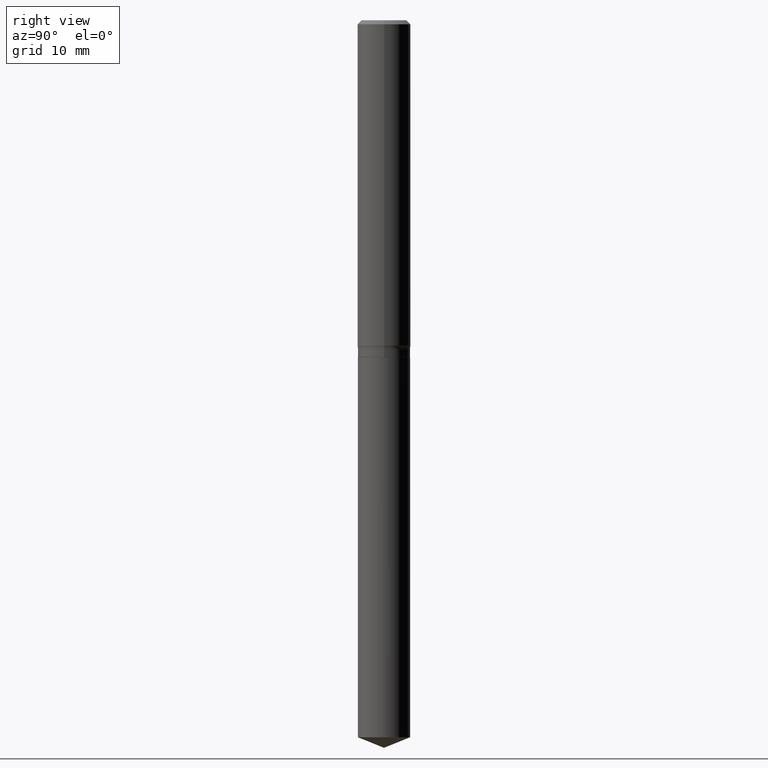
[diagram: clean part render]
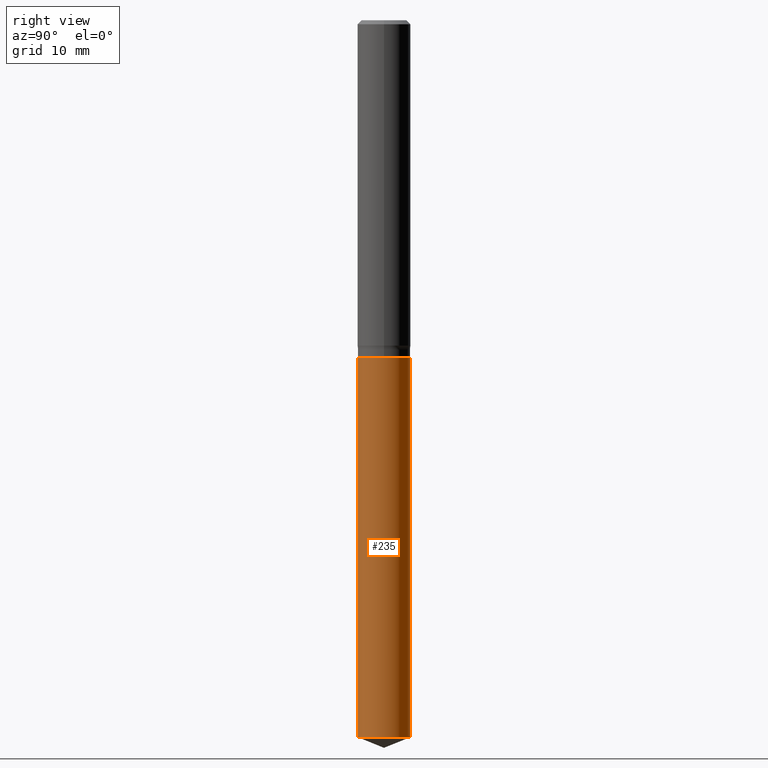
[diagram: same view with one face highlighted and labeled with its STEP entity id]
A machine part, right view. The second image highlights one B-rep face of the part: STEP entity #235.
In plain terms, the highlighted cylindrical surface (edge-blend (fillet) strip) has radius 2.9502 mm, axis along (-0, 0, 1).
Its self-contained STEP definition (entity closure, byte-faithful):
#17 = VERTEX_POINT ( 'NONE', #460 ) ;
#19 = VECTOR ( 'NONE', #210, 39.37007874015748143 ) ;
#25 = CIRCLE ( 'NONE', #471, 0.1161500000000000032 ) ;
#26 = FACE_OUTER_BOUND ( 'NONE', #431, .T. ) ;
#54 = CIRCLE ( 'NONE', #293, 0.1161500000000000032 ) ;
#63 = VERTEX_POINT ( 'NONE', #424 ) ;
#69 = EDGE_CURVE ( 'NONE', #63, #399, #54, .T. ) ;
#73 = CYLINDRICAL_SURFACE ( 'NONE', #433, 0.1161500000000000032 ) ;
#94 = ORIENTED_EDGE ( 'NONE', *, *, #261, .T. ) ;
#131 = CARTESIAN_POINT ( 'NONE',  ( 7.779203458462590144E-29, -1.110666872809960382E-14, -3.181072353869246694 ) ) ;
#144 = DIRECTION ( 'NONE',  ( -6.982962677686265922E-15, -1.000000000000000000, 2.351999994545211393E-15 ) ) ;
#162 = ORIENTED_EDGE ( 'NONE', *, *, #446, .F. ) ;
#187 = ORIENTED_EDGE ( 'NONE', *, *, #468, .F. ) ;
#210 = DIRECTION ( 'NONE',  ( -2.445463019248761495E-29, 3.491489626065407071E-15, 1.000000000000000000 ) ) ;
#213 = DIRECTION ( 'NONE',  ( -6.982962677686265922E-15, -1.000000000000000000, 2.351999994545211393E-15 ) ) ;
#214 = CARTESIAN_POINT ( 'NONE',  ( 3.657687693411109493E-29, -5.222208638507693246E-15, -1.495700000000000029 ) ) ;
#235 = ADVANCED_FACE ( 'NONE', ( #26 ), #73, .T. ) ;
#250 = LINE ( 'NONE', #406, #19 ) ;
#261 = EDGE_CURVE ( 'NONE', #399, #465, #250, .T. ) ;
#262 = CARTESIAN_POINT ( 'NONE',  ( 8.252953875854338945E-16, 0.1161499999999888871, -3.181072353869247582 ) ) ;
#270 = DIRECTION ( 'NONE',  ( -2.445463019248761495E-29, 3.491489626065407071E-15, 1.000000000000000000 ) ) ;
#293 = AXIS2_PLACEMENT_3D ( 'NONE', #131, #454, #307 ) ;
#307 = DIRECTION ( 'NONE',  ( -6.982962677686265922E-15, -1.000000000000000000, 4.703999989090422785E-15 ) ) ;
#319 = DIRECTION ( 'NONE',  ( -2.445463019248761215E-29, 3.491489626065407071E-15, 1.000000000000000000 ) ) ;
#371 = CARTESIAN_POINT ( 'NONE',  ( 3.657687693411109493E-29, -5.222208638507693246E-15, -1.495700000000000029 ) ) ;
#375 = DIRECTION ( 'NONE',  ( -2.445463019248761215E-29, 3.491489626065407071E-15, 1.000000000000000000 ) ) ;
#397 = VECTOR ( 'NONE', #270, 39.37007874015748143 ) ;
#399 = VERTEX_POINT ( 'NONE', #262 ) ;
#404 = LINE ( 'NONE', #427, #397 ) ;
#406 = CARTESIAN_POINT ( 'NONE',  ( 8.252953875853927751E-16, 0.1161499999999947713, -1.495700000000000474 ) ) ;
#424 = CARTESIAN_POINT ( 'NONE',  ( -8.110711150131820431E-16, -0.1161500000000111055, -3.181072353869246250 ) ) ;
#427 = CARTESIAN_POINT ( 'NONE',  ( -8.110711150132233597E-16, -0.1161500000000052213, -1.495699999999999807 ) ) ;
#431 = EDGE_LOOP ( 'NONE', ( #472, #94, #187, #162 ) ) ;
#433 = AXIS2_PLACEMENT_3D ( 'NONE', #214, #319, #213 ) ;
#446 = EDGE_CURVE ( 'NONE', #63, #17, #404, .T. ) ;
#454 = DIRECTION ( 'NONE',  ( -2.445463019248761215E-29, 3.491489626065407071E-15, 1.000000000000000000 ) ) ;
#460 = CARTESIAN_POINT ( 'NONE',  ( -8.110711150132233597E-16, -0.1161500000000052213, -1.495699999999999807 ) ) ;
#465 = VERTEX_POINT ( 'NONE', #485 ) ;
#468 = EDGE_CURVE ( 'NONE', #17, #465, #25, .T. ) ;
#471 = AXIS2_PLACEMENT_3D ( 'NONE', #371, #375, #144 ) ;
#472 = ORIENTED_EDGE ( 'NONE', *, *, #69, .T. ) ;
#485 = CARTESIAN_POINT ( 'NONE',  ( 8.252953875854342889E-16, 0.1161499999999947713, -1.495700000000000474 ) ) ;